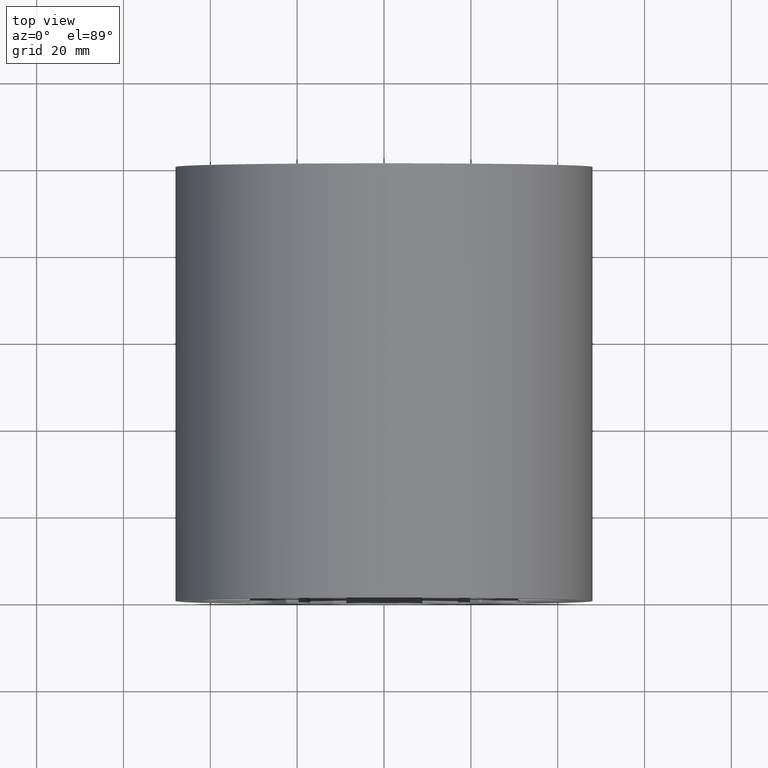
[diagram: clean part render]
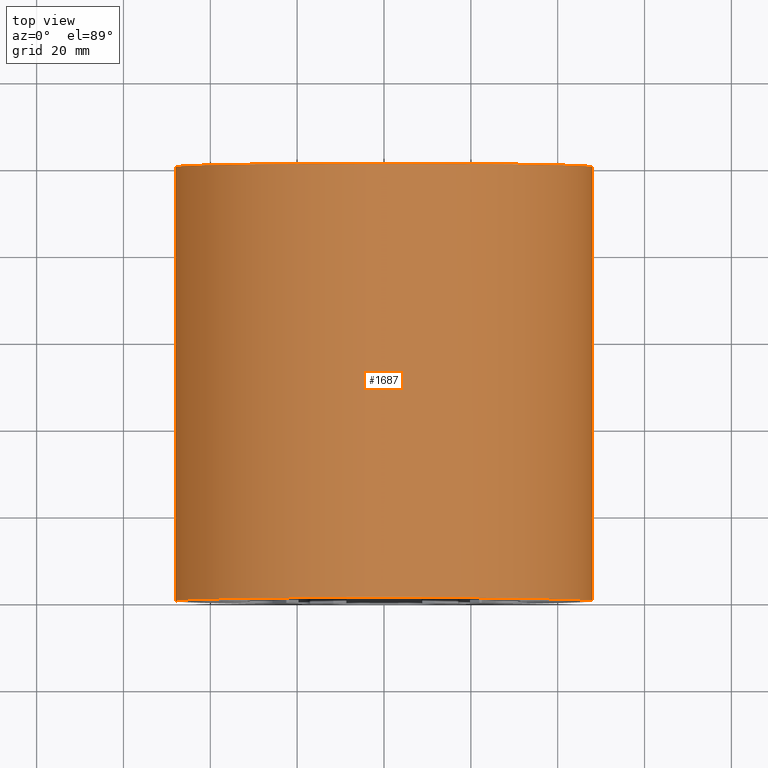
[diagram: same view with one face highlighted and labeled with its STEP entity id]
A machine part, top view. The second image highlights one B-rep face of the part: STEP entity #1687.
In plain terms, the highlighted cylindrical surface (bore or boss wall) has radius 48 mm, axis along (0, 1, 0).
Its self-contained STEP definition (entity closure, byte-faithful):
#127=FACE_OUTER_BOUND('',#214,.T.);
#214=EDGE_LOOP('',(#1368,#1369,#1370,#1371));
#351=LINE('',#2984,#484);
#484=VECTOR('',#2468,48.);
#605=CIRCLE('',#1918,48.);
#606=CIRCLE('',#1919,48.);
#775=VERTEX_POINT('',#2981);
#776=VERTEX_POINT('',#2983);
#1029=EDGE_CURVE('',#775,#775,#605,.T.);
#1030=EDGE_CURVE('',#775,#776,#351,.T.);
#1031=EDGE_CURVE('',#776,#776,#606,.T.);
#1368=ORIENTED_EDGE('',*,*,#1029,.F.);
#1369=ORIENTED_EDGE('',*,*,#1030,.T.);
#1370=ORIENTED_EDGE('',*,*,#1031,.F.);
#1371=ORIENTED_EDGE('',*,*,#1030,.F.);
#1602=CYLINDRICAL_SURFACE('',#1917,48.);
#1687=ADVANCED_FACE('',(#127),#1602,.T.);
#1917=AXIS2_PLACEMENT_3D('',#2980,#2464,#2465);
#1918=AXIS2_PLACEMENT_3D('',#2982,#2466,#2467);
#1919=AXIS2_PLACEMENT_3D('',#2985,#2469,#2470);
#2464=DIRECTION('center_axis',(0.,1.,0.));
#2465=DIRECTION('ref_axis',(1.,0.,0.));
#2466=DIRECTION('center_axis',(0.,1.,0.));
#2467=DIRECTION('ref_axis',(1.,0.,0.));
#2468=DIRECTION('',(0.,-1.,0.));
#2469=DIRECTION('center_axis',(0.,-1.,0.));
#2470=DIRECTION('ref_axis',(1.,0.,0.));
#2980=CARTESIAN_POINT('Origin',(-3.19744231092045E-13,0.,-2.8421709430404E-13));
#2981=CARTESIAN_POINT('',(-48.0000000000003,100.,-2.78338789668133E-13));
#2982=CARTESIAN_POINT('Origin',(-3.19744231092045E-13,100.,-2.8421709430404E-13));
#2983=CARTESIAN_POINT('',(-48.0000000000003,0.,-2.78338789668133E-13));
#2984=CARTESIAN_POINT('',(-48.0000000000003,0.,-2.78338789668133E-13));
#2985=CARTESIAN_POINT('Origin',(-3.19744231092045E-13,0.,-2.8421709430404E-13));